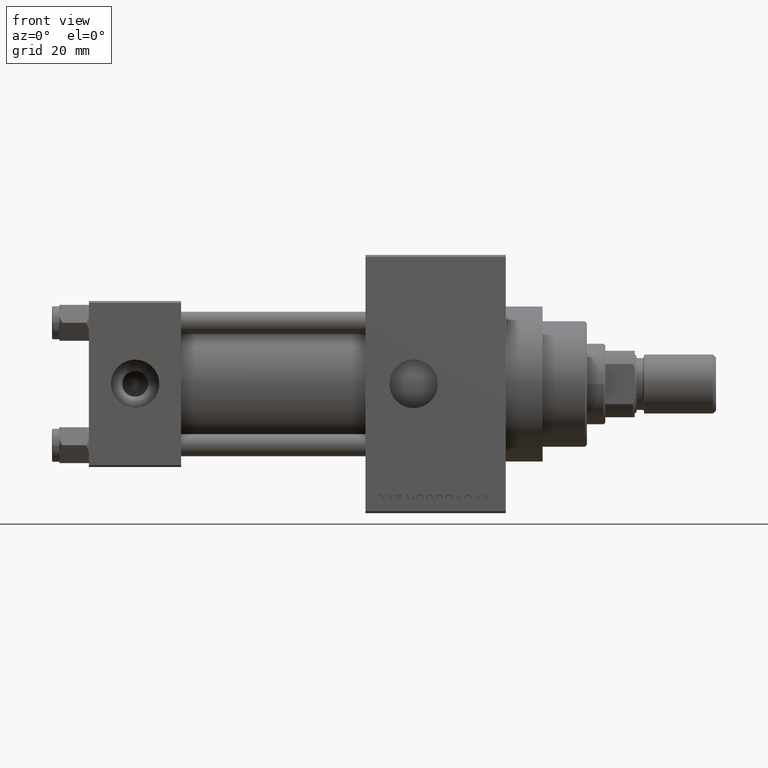
[diagram: clean part render]
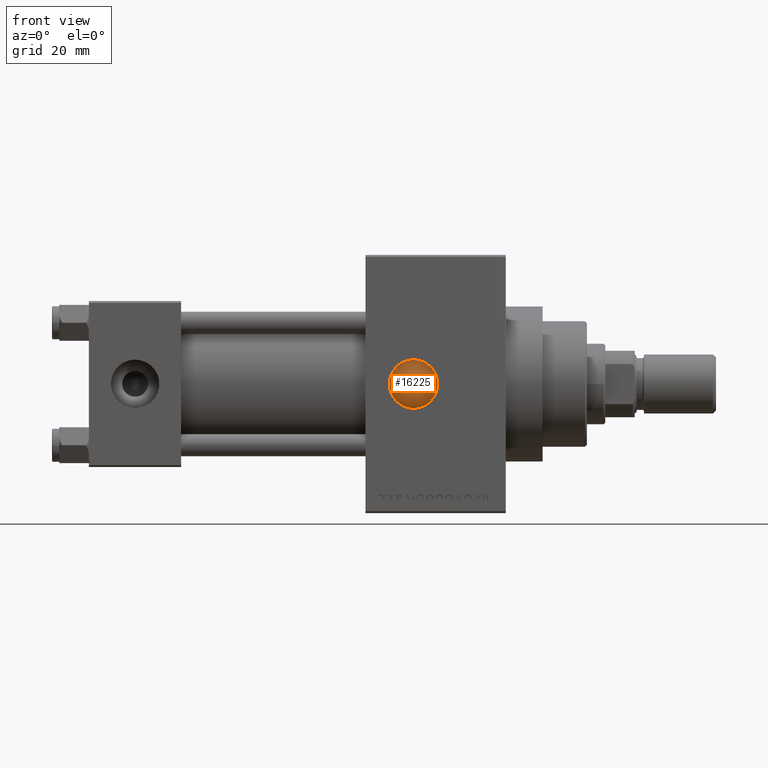
[diagram: same view with one face highlighted and labeled with its STEP entity id]
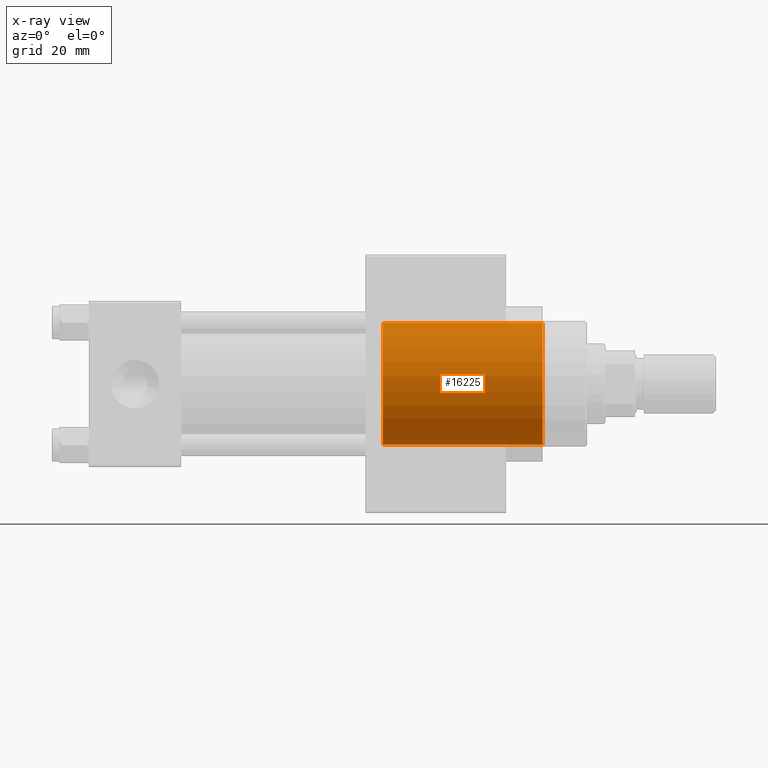
[diagram: x-ray of the same camera — body ghosted, the highlighted face saturated]
A machine part, front view. The second image highlights one B-rep face of the part: STEP entity #16225.
The next image is the same camera in x-ray: the body ghosted, the highlighted face saturated — about 1% of this face is hidden behind the body in this view.
In plain terms, the highlighted cylindrical surface (partial cylindrical patch) has radius 16.5 mm, axis along (-1, 0, 0).
Its self-contained STEP definition (entity closure, byte-faithful):
#263 = EDGE_CURVE ( 'NONE', #18861, #20317, #4364, .T. ) ;
#840 = VECTOR ( 'NONE', #37558, 1000.000000000000000 ) ;
#2607 = CARTESIAN_POINT ( 'NONE',  ( -16.50000000000000000, 0.000000000000000000, 43.25999999999999801 ) ) ;
#2669 = DIRECTION ( 'NONE',  ( 0.000000000000000000, 0.000000000000000000, 1.000000000000000000 ) ) ;
#2692 = CARTESIAN_POINT ( 'NONE',  ( 0.000000000000000000, 0.000000000000000000, 0.000000000000000000 ) ) ;
#4364 = LINE ( 'NONE', #11366, #840 ) ;
#6186 = EDGE_CURVE ( 'NONE', #7192, #20317, #13343, .T. ) ;
#6381 = DIRECTION ( 'NONE',  ( -0.000000000000000000, -0.000000000000000000, -1.000000000000000000 ) ) ;
#7192 = VERTEX_POINT ( 'NONE', #39718 ) ;
#9477 = AXIS2_PLACEMENT_3D ( 'NONE', #42382, #2669, #20245 ) ;
#10157 = DIRECTION ( 'NONE',  ( 0.000000000000000000, 0.000000000000000000, 1.000000000000000000 ) ) ;
#11033 = CIRCLE ( 'NONE', #9477, 16.50000000000000000 ) ;
#11366 = CARTESIAN_POINT ( 'NONE',  ( -16.50000000000000000, 0.000000000000000000, 43.25999999999999801 ) ) ;
#13343 = CIRCLE ( 'NONE', #28679, 16.50000000000000000 ) ;
#13605 = FACE_OUTER_BOUND ( 'NONE', #30478, .T. ) ;
#14980 = DIRECTION ( 'NONE',  ( -1.000000000000000000, 0.000000000000000000, 0.000000000000000000 ) ) ;
#16225 = ADVANCED_FACE ( 'NONE', ( #13605 ), #18583, .T. ) ;
#18583 = CYLINDRICAL_SURFACE ( 'NONE', #47295, 16.50000000000000000 ) ;
#18861 = VERTEX_POINT ( 'NONE', #2607 ) ;
#19622 = ORIENTED_EDGE ( 'NONE', *, *, #6186, .T. ) ;
#20245 = DIRECTION ( 'NONE',  ( 1.000000000000000000, 0.000000000000000000, 0.000000000000000000 ) ) ;
#20317 = VERTEX_POINT ( 'NONE', #30657 ) ;
#25300 = DIRECTION ( 'NONE',  ( 1.000000000000000000, 0.000000000000000000, 0.000000000000000000 ) ) ;
#25815 = ORIENTED_EDGE ( 'NONE', *, *, #37454, .T. ) ;
#27886 = LINE ( 'NONE', #45961, #43259 ) ;
#28382 = CARTESIAN_POINT ( 'NONE',  ( 16.50000000000000000, 2.020667218593133100E-15, 43.25999999999999801 ) ) ;
#28679 = AXIS2_PLACEMENT_3D ( 'NONE', #2692, #10157, #25300 ) ;
#30478 = EDGE_LOOP ( 'NONE', ( #41352, #25815, #19622, #34312 ) ) ;
#30657 = CARTESIAN_POINT ( 'NONE',  ( -16.50000000000000000, 0.000000000000000000, 0.000000000000000000 ) ) ;
#33256 = CARTESIAN_POINT ( 'NONE',  ( 0.000000000000000000, 0.000000000000000000, 43.25999999999999801 ) ) ;
#34312 = ORIENTED_EDGE ( 'NONE', *, *, #263, .F. ) ;
#37454 = EDGE_CURVE ( 'NONE', #38685, #7192, #27886, .T. ) ;
#37558 = DIRECTION ( 'NONE',  ( -0.000000000000000000, -0.000000000000000000, -1.000000000000000000 ) ) ;
#38685 = VERTEX_POINT ( 'NONE', #28382 ) ;
#39718 = CARTESIAN_POINT ( 'NONE',  ( 16.50000000000000000, 2.020667218593133100E-15, 0.000000000000000000 ) ) ;
#39944 = EDGE_CURVE ( 'NONE', #38685, #18861, #11033, .T. ) ;
#41352 = ORIENTED_EDGE ( 'NONE', *, *, #39944, .F. ) ;
#42382 = CARTESIAN_POINT ( 'NONE',  ( 0.000000000000000000, 0.000000000000000000, 43.25999999999999801 ) ) ;
#42582 = DIRECTION ( 'NONE',  ( -0.000000000000000000, -0.000000000000000000, -1.000000000000000000 ) ) ;
#43259 = VECTOR ( 'NONE', #42582, 1000.000000000000000 ) ;
#45961 = CARTESIAN_POINT ( 'NONE',  ( 16.50000000000000000, 2.020667218593133100E-15, 43.25999999999999801 ) ) ;
#47295 = AXIS2_PLACEMENT_3D ( 'NONE', #33256, #6381, #14980 ) ;